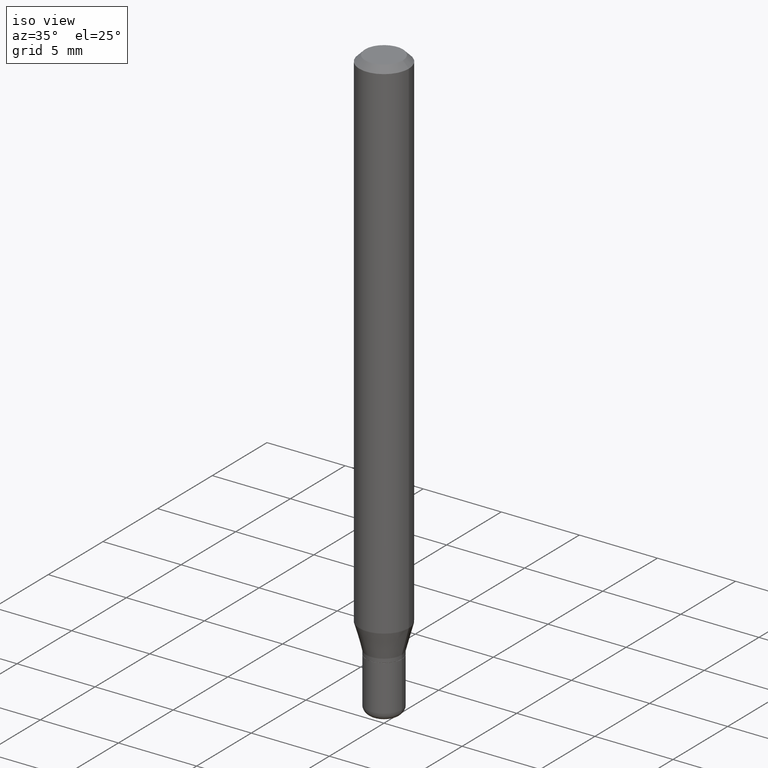
[diagram: clean part render]
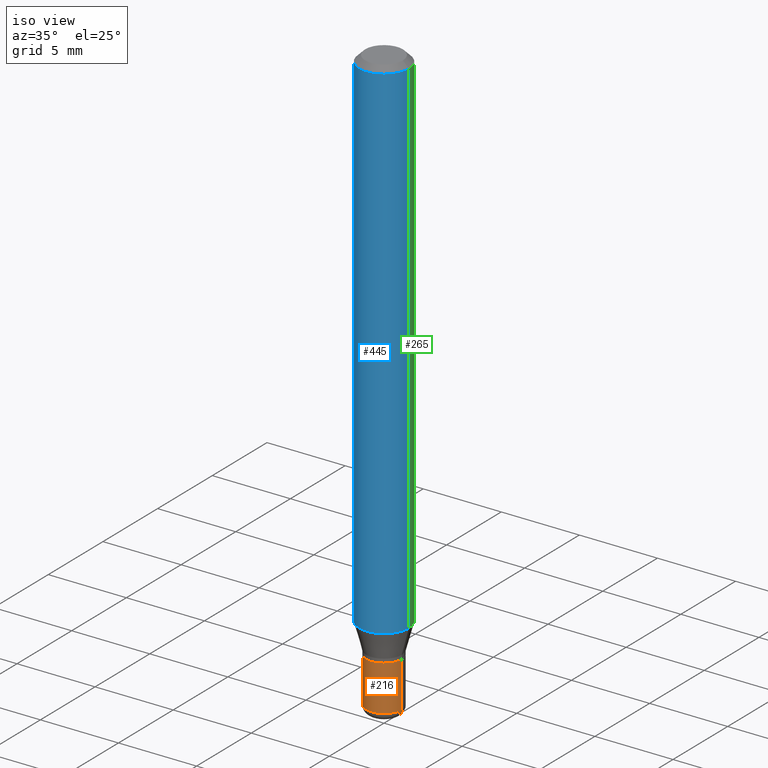
[diagram: same view with three faces highlighted in distinct colors, each labeled with its STEP entity id]
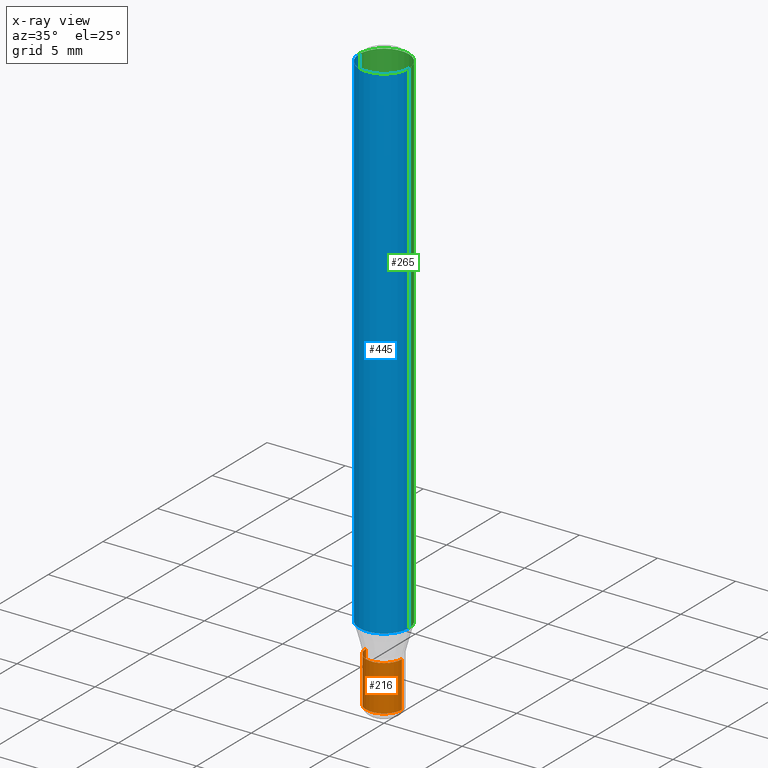
[diagram: x-ray of the same camera — body ghosted, the three highlighted faces saturated]
A machine part, iso view with three faces highlighted in distinct colors.
The next image is the same camera in x-ray (body ghosted, the three faces saturated) — at least one of them is partly hidden behind the body in this view.
Their STEP definitions:

[orange] entity #216 — the highlighted cylindrical surface (edge-blend (fillet) strip) has radius 1.143 mm, axis along (-0, 0, 1).
#9 = DIRECTION ( 'NONE',  ( -2.445468806185136877E-29, 3.491481338843145188E-15, 1.000000000000000000 ) ) ;
#81 = CARTESIAN_POINT ( 'NONE',  ( 0.000000000000000000, 0.000000000000000000, 0.000000000000000000 ) ) ;
#87 = VECTOR ( 'NONE', #9, 39.37007874015748143 ) ;
#94 = EDGE_CURVE ( 'NONE', #321, #462, #249, .T. ) ;
#96 = EDGE_CURVE ( 'NONE', #321, #417, #188, .T. ) ;
#131 = ORIENTED_EDGE ( 'NONE', *, *, #94, .T. ) ;
#133 = DIRECTION ( 'NONE',  ( -2.445468806185136597E-29, 3.491481338843145583E-15, 1.000000000000000000 ) ) ;
#162 = CYLINDRICAL_SURFACE ( 'NONE', #175, 0.04500000000000001221 ) ;
#163 = DIRECTION ( 'NONE',  ( 1.000000000000000000, -6.982962677686269077E-15, 0.000000000000000000 ) ) ;
#164 = EDGE_CURVE ( 'NONE', #417, #393, #227, .T. ) ;
#165 = DIRECTION ( 'NONE',  ( 1.000000000000000000, -6.982962677686267499E-15, 4.876176775795935793E-29 ) ) ;
#174 = CARTESIAN_POINT ( 'NONE',  ( -0.04499999999999999833, -4.646887973412328712E-15, -1.364999999999999991 ) ) ;
#175 = AXIS2_PLACEMENT_3D ( 'NONE', #81, #133, #165 ) ;
#182 = ORIENTED_EDGE ( 'NONE', *, *, #335, .T. ) ;
#188 = LINE ( 'NONE', #507, #486 ) ;
#200 = ORIENTED_EDGE ( 'NONE', *, *, #164, .F. ) ;
#203 = EDGE_LOOP ( 'NONE', ( #268, #131, #182, #200 ) ) ;
#216 = ADVANCED_FACE ( 'NONE', ( #475 ), #162, .T. ) ;
#227 = CIRCLE ( 'NONE', #410, 0.04499999999999999833 ) ;
#228 = DIRECTION ( 'NONE',  ( -2.445468806185136597E-29, 3.491481338843145583E-15, 1.000000000000000000 ) ) ;
#242 = CARTESIAN_POINT ( 'NONE',  ( 0.04500000000000001221, -3.142333204958821302E-16, 2.194279549108171667E-30 ) ) ;
#247 = CARTESIAN_POINT ( 'NONE',  ( 0.04499999999999999833, -5.080105348016775756E-15, -1.364999999999999991 ) ) ;
#249 = CIRCLE ( 'NONE', #459, 0.04500000000000003303 ) ;
#268 = ORIENTED_EDGE ( 'NONE', *, *, #96, .F. ) ;
#302 = CARTESIAN_POINT ( 'NONE',  ( 3.619293833154002365E-29, -5.167392381487854879E-15, -1.479999999999999982 ) ) ;
#321 = VERTEX_POINT ( 'NONE', #430 ) ;
#333 = DIRECTION ( 'NONE',  ( 1.000000000000000000, -6.982962677686263555E-15, 0.000000000000000000 ) ) ;
#335 = EDGE_CURVE ( 'NONE', #462, #393, #433, .T. ) ;
#372 = CARTESIAN_POINT ( 'NONE',  ( 0.04500000000000003303, -5.481625701983737354E-15, -1.479999999999999982 ) ) ;
#393 = VERTEX_POINT ( 'NONE', #247 ) ;
#410 = AXIS2_PLACEMENT_3D ( 'NONE', #477, #438, #163 ) ;
#417 = VERTEX_POINT ( 'NONE', #174 ) ;
#430 = CARTESIAN_POINT ( 'NONE',  ( -0.04500000000000003303, -4.646887973412328712E-15, -1.479999999999999982 ) ) ;
#433 = LINE ( 'NONE', #242, #87 ) ;
#438 = DIRECTION ( 'NONE',  ( -2.445468806185136597E-29, 3.491481338843145583E-15, 1.000000000000000000 ) ) ;
#459 = AXIS2_PLACEMENT_3D ( 'NONE', #302, #228, #333 ) ;
#462 = VERTEX_POINT ( 'NONE', #372 ) ;
#464 = DIRECTION ( 'NONE',  ( -2.445468806185136877E-29, 3.491481338843145188E-15, 1.000000000000000000 ) ) ;
#475 = FACE_OUTER_BOUND ( 'NONE', #203, .T. ) ;
#477 = CARTESIAN_POINT ( 'NONE',  ( 3.338064920442711836E-29, -4.765872027520893280E-15, -1.364999999999999991 ) ) ;
#486 = VECTOR ( 'NONE', #464, 39.37007874015748143 ) ;
#507 = CARTESIAN_POINT ( 'NONE',  ( -0.04500000000000001221, 3.197442310920451704E-16, -2.213520790614708260E-30 ) ) ;

[blue] entity #445 — the highlighted cylindrical surface (edge-blend (fillet) strip) has radius 1.5875 mm, axis along (-0, 0, 1).
#2 = ORIENTED_EDGE ( 'NONE', *, *, #406, .T. ) ;
#7 = FACE_OUTER_BOUND ( 'NONE', #474, .T. ) ;
#11 = CIRCLE ( 'NONE', #264, 0.06250000000000000000 ) ;
#33 = AXIS2_PLACEMENT_3D ( 'NONE', #239, #84, #272 ) ;
#45 = VERTEX_POINT ( 'NONE', #304 ) ;
#76 = CARTESIAN_POINT ( 'NONE',  ( 0.06250000000000000000, -4.364351673553916694E-16, 3.047610484872459871E-30 ) ) ;
#77 = CIRCLE ( 'NONE', #33, 0.06250000000000000000 ) ;
#84 = DIRECTION ( 'NONE',  ( -2.445468806185136597E-29, 3.491481338843145583E-15, 1.000000000000000000 ) ) ;
#92 = VECTOR ( 'NONE', #316, 39.37007874015748143 ) ;
#130 = LINE ( 'NONE', #76, #92 ) ;
#141 = CARTESIAN_POINT ( 'NONE',  ( 3.153894490303225812E-29, -4.502925463503242152E-15, -1.289689110867545008 ) ) ;
#167 = CARTESIAN_POINT ( 'NONE',  ( 0.06250000000000000000, -4.888073874380378612E-16, -0.01499999999999970281 ) ) ;
#172 = CARTESIAN_POINT ( 'NONE',  ( -0.06250000000000000000, 4.440892098500626162E-16, -3.074334431409316114E-30 ) ) ;
#176 = EDGE_CURVE ( 'NONE', #341, #385, #130, .T. ) ;
#177 = DIRECTION ( 'NONE',  ( 1.000000000000000000, -6.982962677686266711E-15, 4.876176775795935793E-29 ) ) ;
#191 = VERTEX_POINT ( 'NONE', #360 ) ;
#218 = VECTOR ( 'NONE', #285, 39.37007874015748143 ) ;
#239 = CARTESIAN_POINT ( 'NONE',  ( 3.668203209277632395E-31, -5.237222008264614861E-17, -0.01499999999999970281 ) ) ;
#246 = DIRECTION ( 'NONE',  ( 1.000000000000000000, -6.982962677686262766E-15, 0.000000000000000000 ) ) ;
#248 = CYLINDRICAL_SURFACE ( 'NONE', #481, 0.06250000000000000000 ) ;
#251 = CARTESIAN_POINT ( 'NONE',  ( 0.06250000000000000000, -4.939360630858633822E-15, -1.289689110867545008 ) ) ;
#264 = AXIS2_PLACEMENT_3D ( 'NONE', #141, #448, #246 ) ;
#272 = DIRECTION ( 'NONE',  ( 1.000000000000000000, -6.982962677686266711E-15, 0.000000000000000000 ) ) ;
#285 = DIRECTION ( 'NONE',  ( -2.445468806185136877E-29, 3.491481338843145188E-15, 1.000000000000000000 ) ) ;
#304 = CARTESIAN_POINT ( 'NONE',  ( -0.06250000000000000000, -4.058836253653178747E-15, -1.289689110867545008 ) ) ;
#316 = DIRECTION ( 'NONE',  ( -2.445468806185136877E-29, 3.491481338843145188E-15, 1.000000000000000000 ) ) ;
#318 = EDGE_CURVE ( 'NONE', #191, #385, #77, .T. ) ;
#341 = VERTEX_POINT ( 'NONE', #251 ) ;
#343 = ORIENTED_EDGE ( 'NONE', *, *, #318, .F. ) ;
#360 = CARTESIAN_POINT ( 'NONE',  ( -0.06250000000000000000, -1.833559631942881408E-15, -0.01499999999999970281 ) ) ;
#368 = LINE ( 'NONE', #172, #218 ) ;
#385 = VERTEX_POINT ( 'NONE', #167 ) ;
#398 = ORIENTED_EDGE ( 'NONE', *, *, #176, .T. ) ;
#402 = CARTESIAN_POINT ( 'NONE',  ( 0.000000000000000000, 0.000000000000000000, 0.000000000000000000 ) ) ;
#406 = EDGE_CURVE ( 'NONE', #45, #341, #11, .T. ) ;
#415 = EDGE_CURVE ( 'NONE', #45, #191, #368, .T. ) ;
#445 = ADVANCED_FACE ( 'NONE', ( #7 ), #248, .T. ) ;
#448 = DIRECTION ( 'NONE',  ( -2.445468806185136597E-29, 3.491481338843145583E-15, 1.000000000000000000 ) ) ;
#474 = EDGE_LOOP ( 'NONE', ( #503, #2, #398, #343 ) ) ;
#481 = AXIS2_PLACEMENT_3D ( 'NONE', #402, #489, #177 ) ;
#489 = DIRECTION ( 'NONE',  ( -2.445468806185136597E-29, 3.491481338843145583E-15, 1.000000000000000000 ) ) ;
#503 = ORIENTED_EDGE ( 'NONE', *, *, #415, .F. ) ;

[green] entity #265 — the highlighted cylindrical surface (edge-blend (fillet) strip) has radius 1.5875 mm, axis along (-0, 0, 1).
#27 = EDGE_CURVE ( 'NONE', #385, #191, #124, .T. ) ;
#32 = FACE_OUTER_BOUND ( 'NONE', #46, .T. ) ;
#45 = VERTEX_POINT ( 'NONE', #304 ) ;
#46 = EDGE_LOOP ( 'NONE', ( #138, #241, #274, #513 ) ) ;
#76 = CARTESIAN_POINT ( 'NONE',  ( 0.06250000000000000000, -4.364351673553916694E-16, 3.047610484872459871E-30 ) ) ;
#92 = VECTOR ( 'NONE', #316, 39.37007874015748143 ) ;
#101 = AXIS2_PLACEMENT_3D ( 'NONE', #463, #107, #144 ) ;
#107 = DIRECTION ( 'NONE',  ( -2.445468806185136597E-29, 3.491481338843145583E-15, 1.000000000000000000 ) ) ;
#124 = CIRCLE ( 'NONE', #403, 0.06250000000000000000 ) ;
#130 = LINE ( 'NONE', #76, #92 ) ;
#138 = ORIENTED_EDGE ( 'NONE', *, *, #483, .T. ) ;
#144 = DIRECTION ( 'NONE',  ( 1.000000000000000000, -6.982962677686262766E-15, 0.000000000000000000 ) ) ;
#155 = DIRECTION ( 'NONE',  ( 1.000000000000000000, -6.982962677686266711E-15, 0.000000000000000000 ) ) ;
#158 = CARTESIAN_POINT ( 'NONE',  ( 0.000000000000000000, 0.000000000000000000, 0.000000000000000000 ) ) ;
#167 = CARTESIAN_POINT ( 'NONE',  ( 0.06250000000000000000, -4.888073874380378612E-16, -0.01499999999999970281 ) ) ;
#168 = AXIS2_PLACEMENT_3D ( 'NONE', #158, #319, #194 ) ;
#172 = CARTESIAN_POINT ( 'NONE',  ( -0.06250000000000000000, 4.440892098500626162E-16, -3.074334431409316114E-30 ) ) ;
#176 = EDGE_CURVE ( 'NONE', #341, #385, #130, .T. ) ;
#180 = DIRECTION ( 'NONE',  ( -2.445468806185136597E-29, 3.491481338843145583E-15, 1.000000000000000000 ) ) ;
#191 = VERTEX_POINT ( 'NONE', #360 ) ;
#194 = DIRECTION ( 'NONE',  ( 1.000000000000000000, -6.982962677686266711E-15, 4.876176775795935793E-29 ) ) ;
#218 = VECTOR ( 'NONE', #285, 39.37007874015748143 ) ;
#241 = ORIENTED_EDGE ( 'NONE', *, *, #415, .T. ) ;
#251 = CARTESIAN_POINT ( 'NONE',  ( 0.06250000000000000000, -4.939360630858633822E-15, -1.289689110867545008 ) ) ;
#265 = ADVANCED_FACE ( 'NONE', ( #32 ), #356, .T. ) ;
#274 = ORIENTED_EDGE ( 'NONE', *, *, #27, .F. ) ;
#285 = DIRECTION ( 'NONE',  ( -2.445468806185136877E-29, 3.491481338843145188E-15, 1.000000000000000000 ) ) ;
#304 = CARTESIAN_POINT ( 'NONE',  ( -0.06250000000000000000, -4.058836253653178747E-15, -1.289689110867545008 ) ) ;
#316 = DIRECTION ( 'NONE',  ( -2.445468806185136877E-29, 3.491481338843145188E-15, 1.000000000000000000 ) ) ;
#319 = DIRECTION ( 'NONE',  ( -2.445468806185136597E-29, 3.491481338843145583E-15, 1.000000000000000000 ) ) ;
#336 = CARTESIAN_POINT ( 'NONE',  ( 3.668203209277632395E-31, -5.237222008264614861E-17, -0.01499999999999970281 ) ) ;
#341 = VERTEX_POINT ( 'NONE', #251 ) ;
#356 = CYLINDRICAL_SURFACE ( 'NONE', #168, 0.06250000000000000000 ) ;
#360 = CARTESIAN_POINT ( 'NONE',  ( -0.06250000000000000000, -1.833559631942881408E-15, -0.01499999999999970281 ) ) ;
#366 = CIRCLE ( 'NONE', #101, 0.06250000000000000000 ) ;
#368 = LINE ( 'NONE', #172, #218 ) ;
#385 = VERTEX_POINT ( 'NONE', #167 ) ;
#403 = AXIS2_PLACEMENT_3D ( 'NONE', #336, #180, #155 ) ;
#415 = EDGE_CURVE ( 'NONE', #45, #191, #368, .T. ) ;
#463 = CARTESIAN_POINT ( 'NONE',  ( 3.153894490303225812E-29, -4.502925463503242152E-15, -1.289689110867545008 ) ) ;
#483 = EDGE_CURVE ( 'NONE', #341, #45, #366, .T. ) ;
#513 = ORIENTED_EDGE ( 'NONE', *, *, #176, .F. ) ;